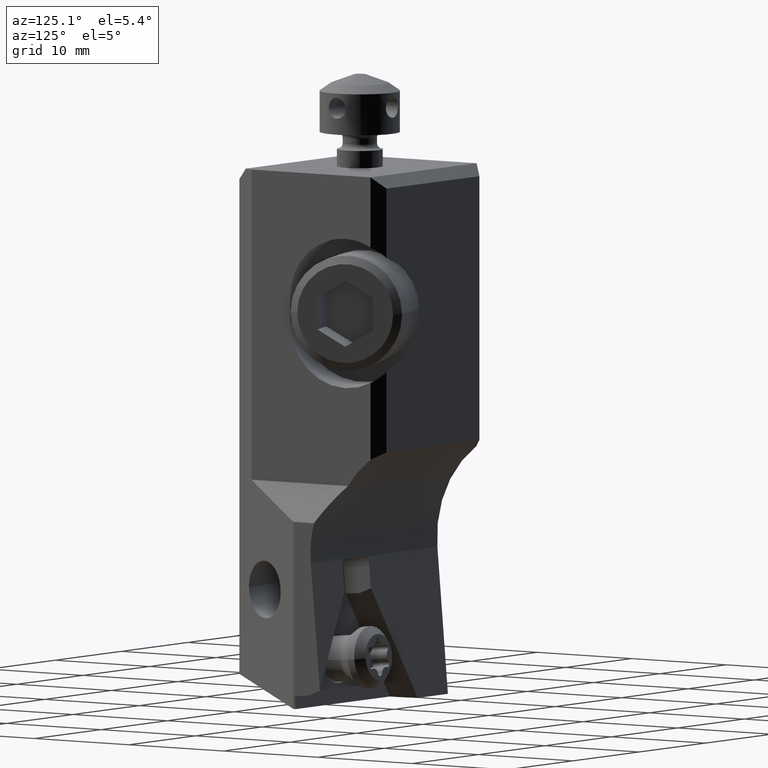
[diagram: clean part render]
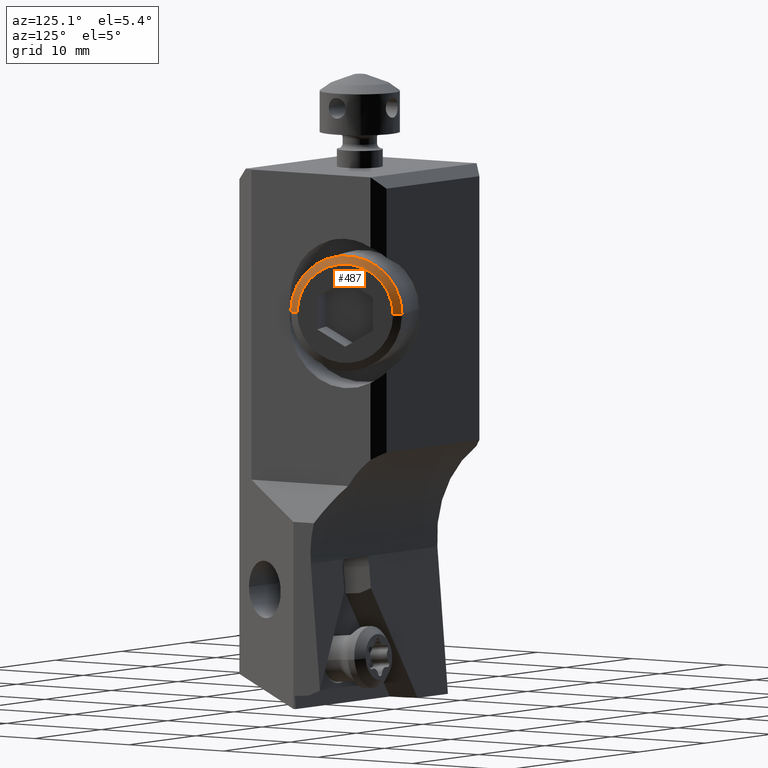
[diagram: same view with one face highlighted and labeled with its STEP entity id]
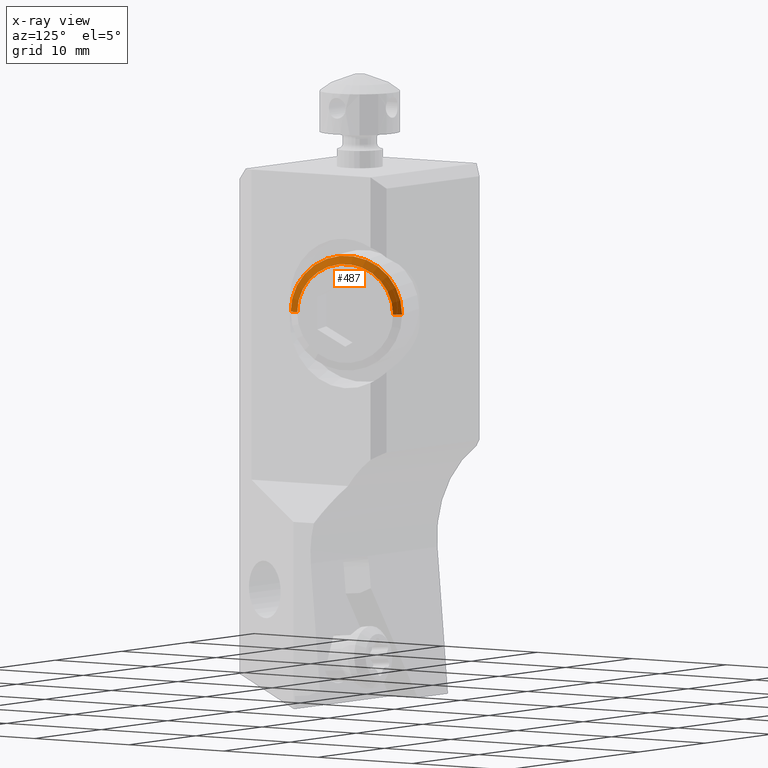
[diagram: x-ray of the same camera — body ghosted, the highlighted face saturated]
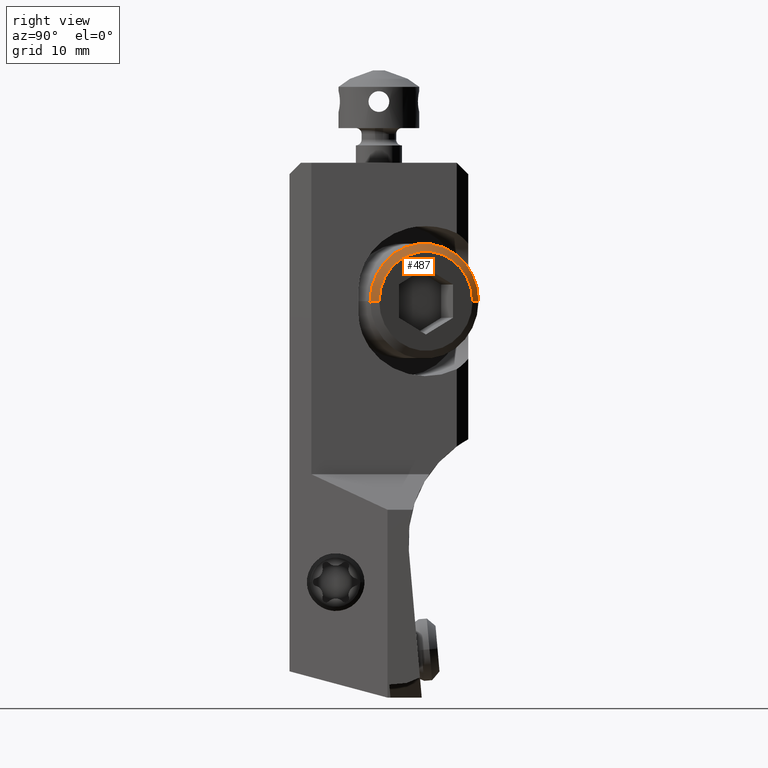
[diagram: same view with one face highlighted and labeled with its STEP entity id]
A machine part, auxiliary view. The second image highlights one B-rep face of the part: STEP entity #487.
The next image is the same camera in x-ray: the body ghosted, the highlighted face saturated — about 0% of this face is hidden behind the body in this view.
A second angle (right view) of the same face is appended — the face is thin or edge-on in the first view.
In plain terms, the highlighted conical surface has half-angle 60 deg.
Its self-contained STEP definition (entity closure, byte-faithful):
#131=CONICAL_SURFACE('',#2942,4.653589838502,60.0000000003);
#353=CIRCLE('',#2939,5.000000000016);
#354=CIRCLE('',#2941,4.307179676986);
#487=ADVANCED_FACE('',(#665),#131,.T.);
#665=FACE_OUTER_BOUND('',#818,.T.);
#818=EDGE_LOOP('',(#1871,#1872,#1873,#1874));
#983=LINE('',#5286,#1157);
#984=LINE('',#5290,#1158);
#1157=VECTOR('',#3715,1.);
#1158=VECTOR('',#3718,1.);
#1871=ORIENTED_EDGE('',*,*,#2503,.F.);
#1872=ORIENTED_EDGE('',*,*,#2504,.T.);
#1873=ORIENTED_EDGE('',*,*,#2505,.T.);
#1874=ORIENTED_EDGE('',*,*,#2506,.T.);
#2140=VERTEX_POINT('',#5279);
#2141=VERTEX_POINT('',#5280);
#2142=VERTEX_POINT('',#5287);
#2143=VERTEX_POINT('',#5289);
#2503=EDGE_CURVE('',#2141,#2140,#353,.T.);
#2504=EDGE_CURVE('',#2141,#2142,#983,.T.);
#2505=EDGE_CURVE('',#2142,#2143,#354,.T.);
#2506=EDGE_CURVE('',#2143,#2140,#984,.T.);
#2939=AXIS2_PLACEMENT_3D('',#5284,#3711,#3712);
#2941=AXIS2_PLACEMENT_3D('',#5288,#3716,#3717);
#2942=AXIS2_PLACEMENT_3D('',#5291,#3719,#3720);
#3711=DIRECTION('',(-0.939692620787747,-0.342020143320617,0.));
#3712=DIRECTION('',(0.342020143320617,-0.939692620787747,0.));
#3715=DIRECTION('',(0.173648177664603,0.984807753012618,0.));
#3716=DIRECTION('',(-0.939692620787747,-0.342020143320617,0.));
#3717=DIRECTION('',(0.342020143320617,-0.939692620787747,0.));
#3718=DIRECTION('',(-0.766044443129088,0.64278760967449,0.));
#3719=DIRECTION('',(-0.939692620787747,-0.342020143320617,0.));
#3720=DIRECTION('',(0.342020143320617,-0.939692620787747,0.));
#5279=CARTESIAN_POINT('',(-2.08597776491,16.38517879486,-12.));
#5280=CARTESIAN_POINT('',(1.334223668317,6.988252587007,-12.));
#5284=CARTESIAN_POINT('',(-0.3758770482944,11.68671569096,-12.));
#5286=CARTESIAN_POINT('',(1.334223668317,6.988252587007,-12.));
#5287=CARTESIAN_POINT('',(1.473142210447,7.776098789411,-12.));
#5288=CARTESIAN_POINT('',(1.752598066673E-11,11.82352374828,-12.));
#5289=CARTESIAN_POINT('',(-1.473142210415,15.87094870713,-12.));
#5290=CARTESIAN_POINT('',(-1.473142210415,15.87094870713,-12.));
#5291=CARTESIAN_POINT('',(-0.1879385241389,11.75511971962,-12.));